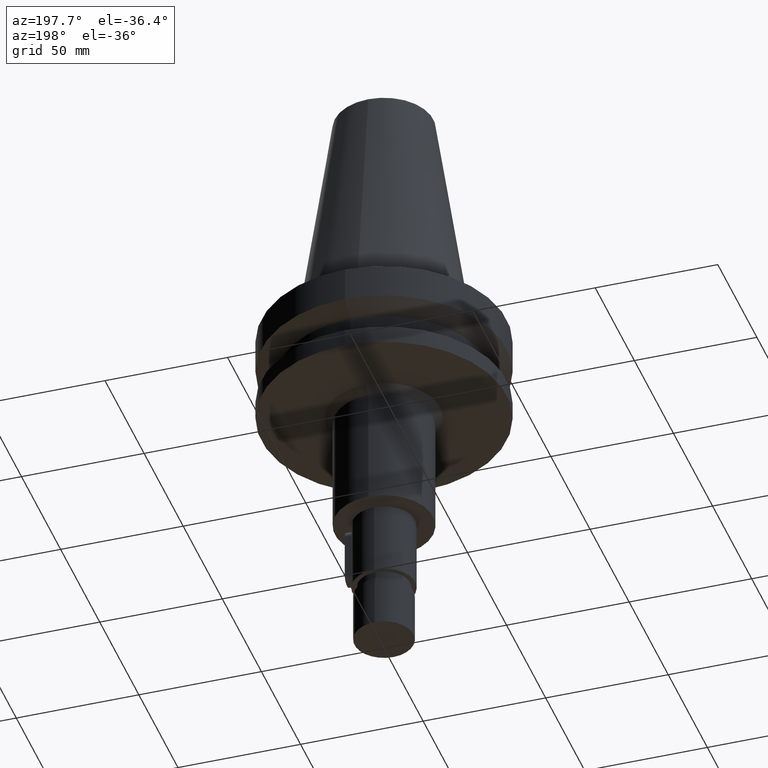
[diagram: clean part render]
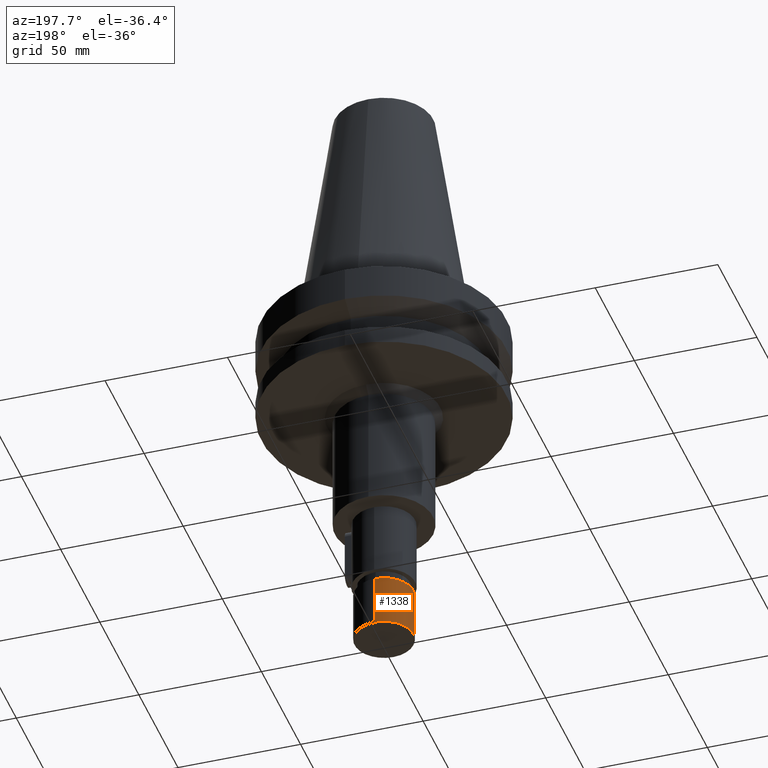
[diagram: same view with one face highlighted and labeled with its STEP entity id]
A machine part, auxiliary view. The second image highlights one B-rep face of the part: STEP entity #1338.
In plain terms, the highlighted cylindrical surface (edge-blend (fillet) strip) has radius 12 mm, axis along (0, 0, -1).
Its self-contained STEP definition (entity closure, byte-faithful):
#526=CARTESIAN_POINT('',(0.E0,2.622458655694E-14,-1.24E2));
#527=DIRECTION('',(0.E0,0.E0,-1.E0));
#528=DIRECTION('',(0.E0,-1.E0,0.E0));
#529=AXIS2_PLACEMENT_3D('',#526,#527,#528);
#550=DIRECTION('',(0.E0,0.E0,-1.E0));
#551=VECTOR('',#550,2.1E1);
#552=CARTESIAN_POINT('',(0.E0,1.2E1,-1.24E2));
#553=LINE('',#552,#551);
#557=DIRECTION('',(0.E0,0.E0,-1.E0));
#558=VECTOR('',#557,2.1E1);
#559=CARTESIAN_POINT('',(0.E0,-1.2E1,-1.24E2));
#560=LINE('',#559,#558);
#564=CARTESIAN_POINT('',(0.E0,2.622458655694E-14,-1.45E2));
#565=DIRECTION('',(0.E0,0.E0,1.E0));
#566=DIRECTION('',(0.E0,1.E0,0.E0));
#567=AXIS2_PLACEMENT_3D('',#564,#565,#566);
#789=CARTESIAN_POINT('',(0.E0,1.2E1,-1.24E2));
#790=CARTESIAN_POINT('',(0.E0,-1.2E1,-1.24E2));
#791=VERTEX_POINT('',#789);
#792=VERTEX_POINT('',#790);
#793=CARTESIAN_POINT('',(0.E0,1.2E1,-1.45E2));
#794=VERTEX_POINT('',#793);
#795=CARTESIAN_POINT('',(0.E0,-1.2E1,-1.45E2));
#796=VERTEX_POINT('',#795);
#1326=CARTESIAN_POINT('',(0.E0,2.622458655694E-14,1.1414E2));
#1327=DIRECTION('',(0.E0,0.E0,-1.E0));
#1328=DIRECTION('',(0.E0,-1.E0,0.E0));
#1329=AXIS2_PLACEMENT_3D('',#1326,#1327,#1328);
#1330=CYLINDRICAL_SURFACE('',#1329,1.2E1);
#1331=ORIENTED_EDGE('',*,*,#1316,.F.);
#1332=ORIENTED_EDGE('',*,*,#1302,.F.);
#1333=ORIENTED_EDGE('',*,*,#1320,.T.);
#1335=ORIENTED_EDGE('',*,*,#1334,.F.);
#1336=EDGE_LOOP('',(#1331,#1332,#1333,#1335));
#1337=FACE_OUTER_BOUND('',#1336,.F.);
#530=CIRCLE('',#529,1.2E1);
#568=CIRCLE('',#567,1.2E1);
#1302=EDGE_CURVE('',#792,#791,#530,.T.);
#1316=EDGE_CURVE('',#791,#794,#553,.T.);
#1320=EDGE_CURVE('',#792,#796,#560,.T.);
#1334=EDGE_CURVE('',#794,#796,#568,.T.);
#1338=ADVANCED_FACE('',(#1337),#1330,.T.);